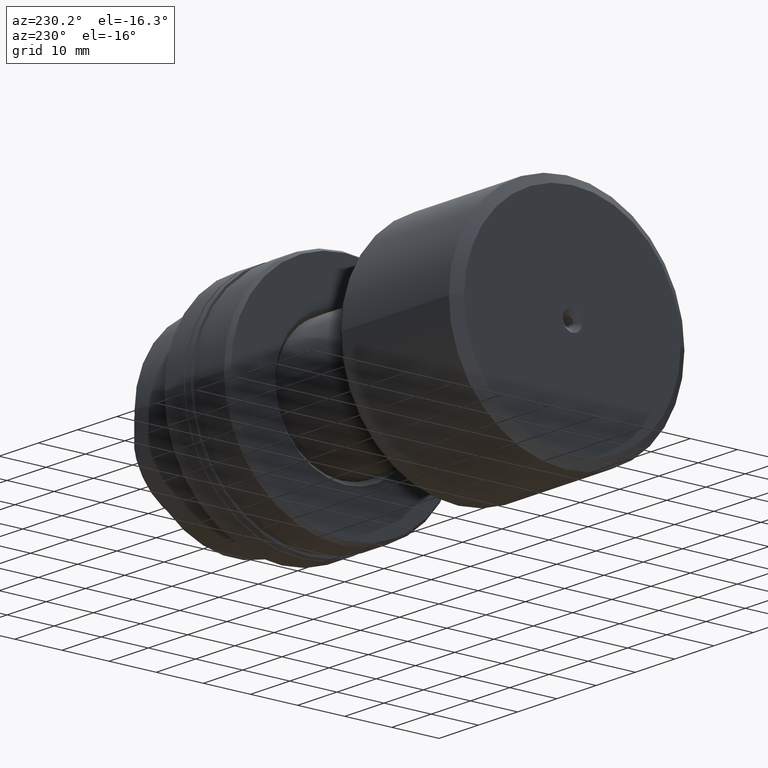
[diagram: clean part render]
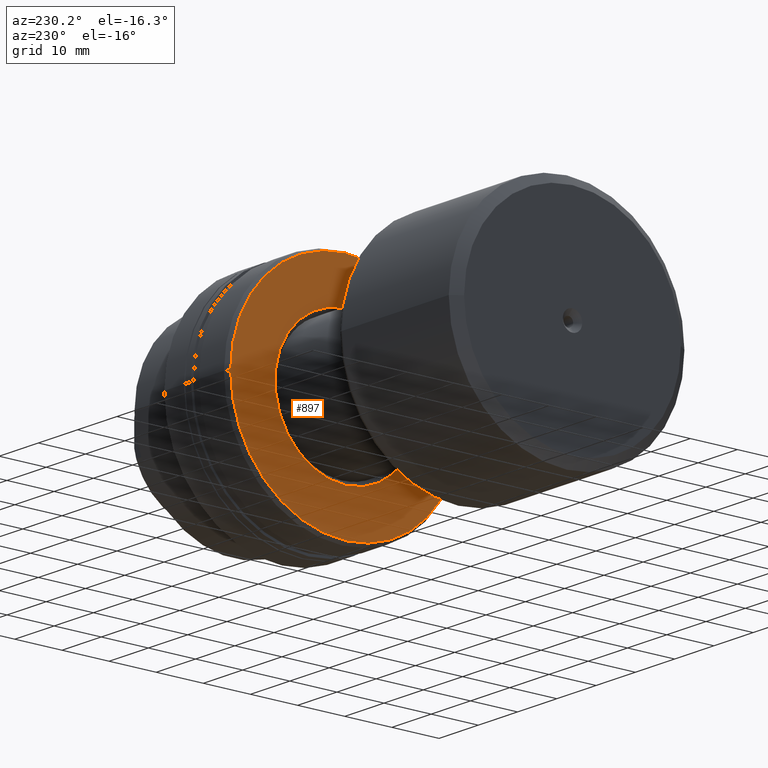
[diagram: same view with one face highlighted and labeled with its STEP entity id]
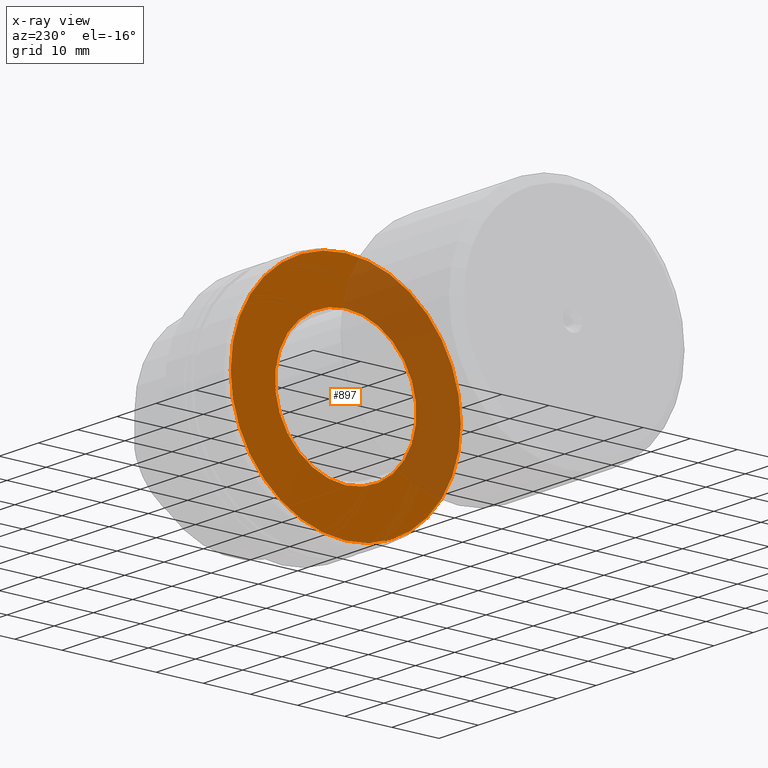
[diagram: x-ray of the same camera — body ghosted, the highlighted face saturated]
A machine part, auxiliary view. The second image highlights one B-rep face of the part: STEP entity #897.
The next image is the same camera in x-ray: the body ghosted, the highlighted face saturated — about 35% of this face is hidden behind the body in this view.
In plain terms, the highlighted planar face has unit normal (1, 0, 0).
Its self-contained STEP definition (entity closure, byte-faithful):
#20 = ORIENTED_EDGE ( 'NONE', *, *, #1398, .F. ) ;
#62 = DIRECTION ( 'NONE',  ( 1.000000000000000000, 1.931394410353556421E-15, -0.000000000000000000 ) ) ;
#74 = DIRECTION ( 'NONE',  ( 1.000000000000000000, 1.931394410353556421E-15, -0.000000000000000000 ) ) ;
#207 = DIRECTION ( 'NONE',  ( -1.931394410353556421E-15, 1.000000000000000000, 0.000000000000000000 ) ) ;
#259 = EDGE_CURVE ( 'NONE', #313, #726, #533, .T. ) ;
#281 = CARTESIAN_POINT ( 'NONE',  ( -32.20000000000000284, -24.42264973081048041, 3.026264489910892218E-15 ) ) ;
#283 = CARTESIAN_POINT ( 'NONE',  ( -32.20000000000001705, 1.836970198721031955E-15, -15.00000000000001776 ) ) ;
#313 = VERTEX_POINT ( 'NONE', #1417 ) ;
#377 = AXIS2_PLACEMENT_3D ( 'NONE', #2165, #74, #207 ) ;
#426 = DIRECTION ( 'NONE',  ( -1.850371707708588449E-15, 1.000000000000000000, 0.000000000000000000 ) ) ;
#533 = CIRCLE ( 'NONE', #1108, 24.42264973081047685 ) ;
#587 = DIRECTION ( 'NONE',  ( 1.000000000000000000, 1.931394410353556421E-15, -0.000000000000000000 ) ) ;
#654 = ORIENTED_EDGE ( 'NONE', *, *, #1525, .T. ) ;
#706 = CARTESIAN_POINT ( 'NONE',  ( -32.20000000000004547, -3.708233295962744887E-15, 0.000000000000000000 ) ) ;
#715 = CIRCLE ( 'NONE', #1753, 15.00000000000004796 ) ;
#726 = VERTEX_POINT ( 'NONE', #281 ) ;
#897 = ADVANCED_FACE ( 'NONE', ( #1497, #1308 ), #1127, .F. ) ;
#918 = ORIENTED_EDGE ( 'NONE', *, *, #259, .F. ) ;
#935 = DIRECTION ( 'NONE',  ( -1.850371707708588449E-15, 1.000000000000000000, 0.000000000000000000 ) ) ;
#946 = CARTESIAN_POINT ( 'NONE',  ( -32.20000000000004547, -3.708233295962744887E-15, 0.000000000000000000 ) ) ;
#1031 = EDGE_CURVE ( 'NONE', #2054, #1457, #1075, .T. ) ;
#1047 = EDGE_LOOP ( 'NONE', ( #918, #20 ) ) ;
#1050 = DIRECTION ( 'NONE',  ( 1.000000000000000000, 1.931394410353556421E-15, -0.000000000000000000 ) ) ;
#1075 = CIRCLE ( 'NONE', #1196, 15.00000000000004796 ) ;
#1108 = AXIS2_PLACEMENT_3D ( 'NONE', #706, #1050, #2312 ) ;
#1127 = PLANE ( 'NONE',  #377 ) ;
#1196 = AXIS2_PLACEMENT_3D ( 'NONE', #1994, #62, #935 ) ;
#1202 = EDGE_LOOP ( 'NONE', ( #654, #1516 ) ) ;
#1291 = DIRECTION ( 'NONE',  ( -1.988820126510437713E-15, 1.000000000000000000, 0.000000000000000000 ) ) ;
#1308 = FACE_OUTER_BOUND ( 'NONE', #1047, .T. ) ;
#1398 = EDGE_CURVE ( 'NONE', #726, #313, #1641, .T. ) ;
#1417 = CARTESIAN_POINT ( 'NONE',  ( -32.20000000000009521, 24.42264973081047330, 0.000000000000000000 ) ) ;
#1457 = VERTEX_POINT ( 'NONE', #2159 ) ;
#1494 = AXIS2_PLACEMENT_3D ( 'NONE', #946, #1805, #1291 ) ;
#1497 = FACE_BOUND ( 'NONE', #1202, .T. ) ;
#1516 = ORIENTED_EDGE ( 'NONE', *, *, #1031, .T. ) ;
#1525 = EDGE_CURVE ( 'NONE', #1457, #2054, #715, .T. ) ;
#1641 = CIRCLE ( 'NONE', #1494, 24.42264973081047685 ) ;
#1753 = AXIS2_PLACEMENT_3D ( 'NONE', #2186, #587, #426 ) ;
#1805 = DIRECTION ( 'NONE',  ( 1.000000000000000000, 1.931394410353556421E-15, -0.000000000000000000 ) ) ;
#1994 = CARTESIAN_POINT ( 'NONE',  ( -32.20000000000001705, 0.000000000000000000, 0.000000000000000000 ) ) ;
#2054 = VERTEX_POINT ( 'NONE', #283 ) ;
#2159 = CARTESIAN_POINT ( 'NONE',  ( -32.20000000000001705, 0.000000000000000000, 15.00000000000001776 ) ) ;
#2165 = CARTESIAN_POINT ( 'NONE',  ( -32.20000000000001705, -3.708233295962698345E-15, 0.000000000000000000 ) ) ;
#2186 = CARTESIAN_POINT ( 'NONE',  ( -32.20000000000001705, 0.000000000000000000, 0.000000000000000000 ) ) ;
#2312 = DIRECTION ( 'NONE',  ( -1.988820126510437713E-15, 1.000000000000000000, 0.000000000000000000 ) ) ;